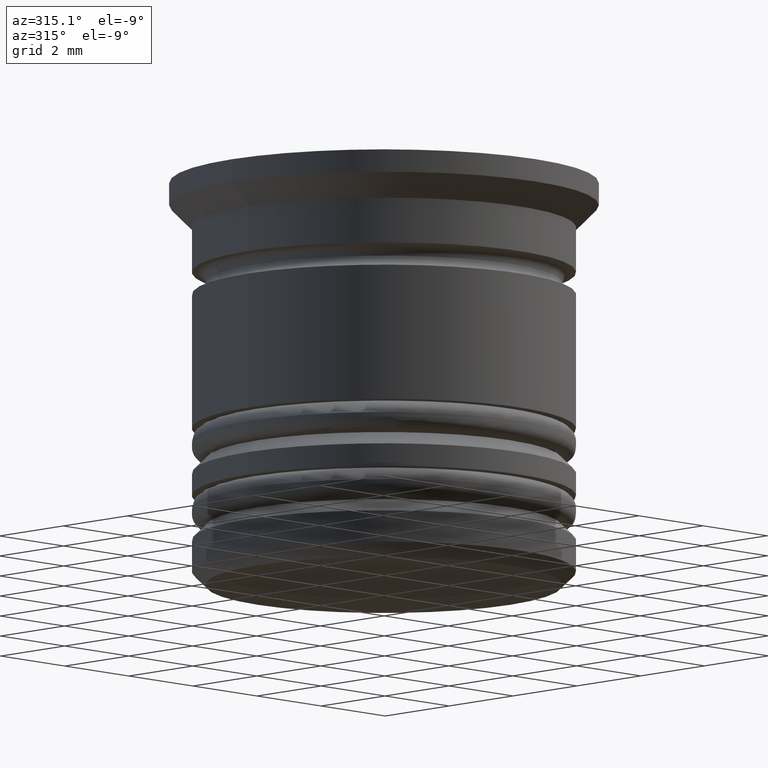
[diagram: clean part render]
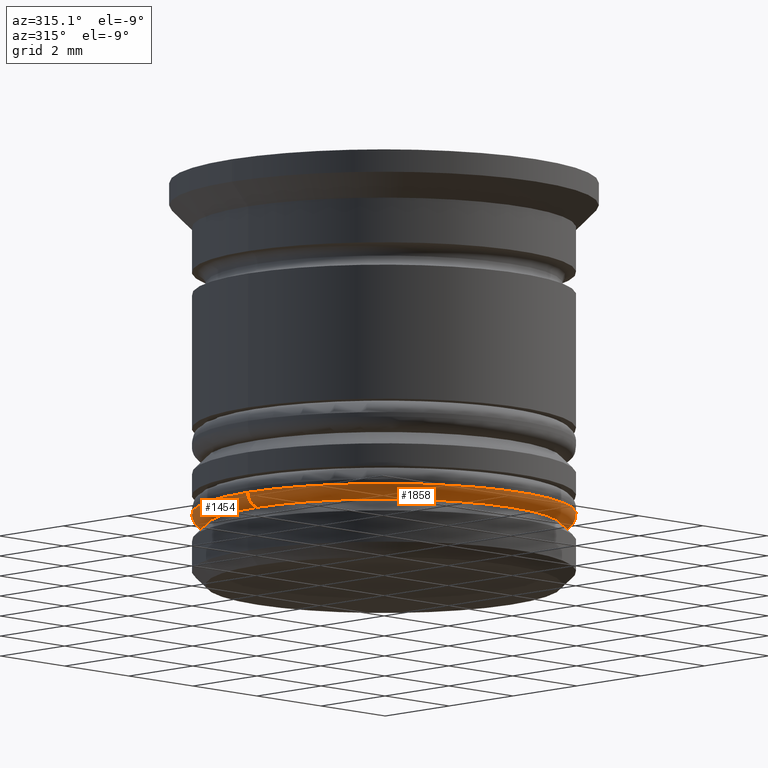
[diagram: same view with one multi-face feature highlighted, each face labeled with its STEP entity id]
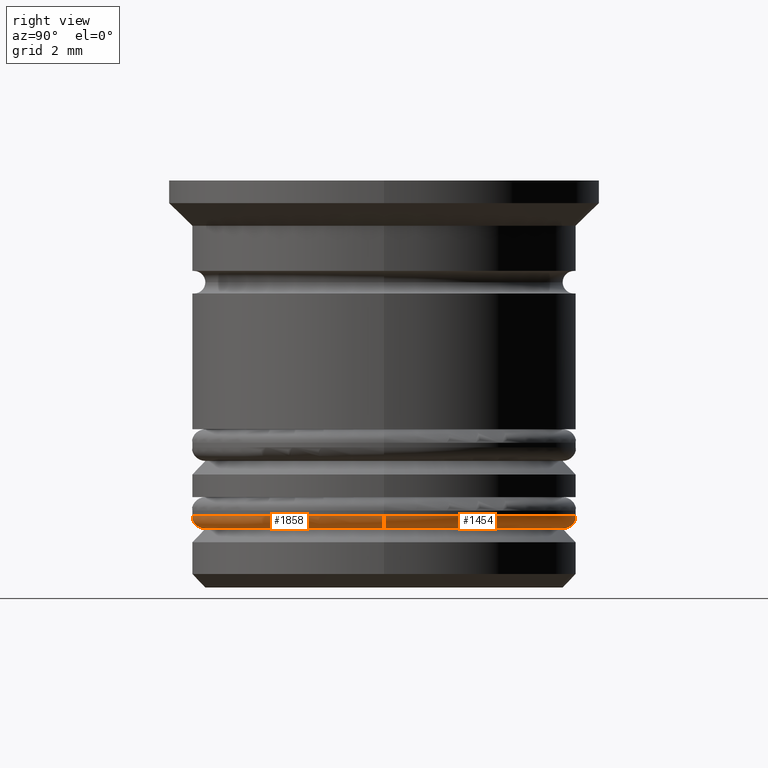
[diagram: same view with one multi-face feature highlighted, each face labeled with its STEP entity id]
A machine part, auxiliary view. The highlighted faces form ONE feature: a constant-radius fillet chain: 2 tangent blend faces with common blend radius 0.3 mm. The faces share edges in the B-rep.
A second angle (right view) of the same feature is appended — it is thin or edge-on in the first view.
Their STEP definitions:
[1] entity #1858 (Torus):
#35 = VERTEX_POINT ( 'NONE', #861 ) ;
#81 = CIRCLE ( 'NONE', #1633, 0.2999999999999999334 ) ;
#93 = EDGE_CURVE ( 'NONE', #35, #1639, #746, .T. ) ;
#168 = CARTESIAN_POINT ( 'NONE',  ( -3.950000000000000178, 4.837354856632045057E-16, -7.400000000000005684 ) ) ;
#271 = EDGE_LOOP ( 'NONE', ( #1100, #416, #1562, #1157 ) ) ;
#410 = AXIS2_PLACEMENT_3D ( 'NONE', #1859, #772, #436 ) ;
#416 = ORIENTED_EDGE ( 'NONE', *, *, #1312, .F. ) ;
#420 = CARTESIAN_POINT ( 'NONE',  ( 0.000000000000000000, 0.000000000000000000, -7.400000000000005684 ) ) ;
#436 = DIRECTION ( 'NONE',  ( 1.000000000000000000, 0.000000000000000000, 0.000000000000000000 ) ) ;
#581 = DIRECTION ( 'NONE',  ( 1.000000000000000000, 0.000000000000000000, 0.000000000000000000 ) ) ;
#593 = FACE_OUTER_BOUND ( 'NONE', #271, .T. ) ;
#621 = DIRECTION ( 'NONE',  ( -1.000000000000000000, 1.224646799147353207E-16, 0.000000000000000000 ) ) ;
#746 = CIRCLE ( 'NONE', #810, 4.250000000000000000 ) ;
#772 = DIRECTION ( 'NONE',  ( 0.000000000000000000, 0.000000000000000000, 1.000000000000000000 ) ) ;
#810 = AXIS2_PLACEMENT_3D ( 'NONE', #420, #1999, #581 ) ;
#821 = VERTEX_POINT ( 'NONE', #1728 ) ;
#851 = TOROIDAL_SURFACE ( 'NONE', #410, 3.950000000000000178, 0.2999999999999999889 ) ;
#861 = CARTESIAN_POINT ( 'NONE',  ( -4.250000000000000000, 5.204748896376250699E-16, -7.400000000000005684 ) ) ;
#885 = CIRCLE ( 'NONE', #1077, 3.950000000000000178 ) ;
#911 = AXIS2_PLACEMENT_3D ( 'NONE', #1820, #2001, #2011 ) ;
#1032 = CARTESIAN_POINT ( 'NONE',  ( 3.950000000000000178, 0.000000000000000000, -7.700000000000005507 ) ) ;
#1038 = VERTEX_POINT ( 'NONE', #1032 ) ;
#1057 = CARTESIAN_POINT ( 'NONE',  ( 0.000000000000000000, 0.000000000000000000, -7.700000000000005507 ) ) ;
#1077 = AXIS2_PLACEMENT_3D ( 'NONE', #1057, #2014, #1230 ) ;
#1100 = ORIENTED_EDGE ( 'NONE', *, *, #1891, .F. ) ;
#1157 = ORIENTED_EDGE ( 'NONE', *, *, #93, .F. ) ;
#1230 = DIRECTION ( 'NONE',  ( 1.000000000000000000, 0.000000000000000000, 0.000000000000000000 ) ) ;
#1312 = EDGE_CURVE ( 'NONE', #1038, #821, #885, .T. ) ;
#1562 = ORIENTED_EDGE ( 'NONE', *, *, #1649, .T. ) ;
#1633 = AXIS2_PLACEMENT_3D ( 'NONE', #168, #1888, #621 ) ;
#1639 = VERTEX_POINT ( 'NONE', #1683 ) ;
#1649 = EDGE_CURVE ( 'NONE', #1038, #1639, #1698, .T. ) ;
#1683 = CARTESIAN_POINT ( 'NONE',  ( 4.250000000000000000, 0.000000000000000000, -7.400000000000005684 ) ) ;
#1698 = CIRCLE ( 'NONE', #911, 0.2999999999999999334 ) ;
#1728 = CARTESIAN_POINT ( 'NONE',  ( -3.950000000000000178, 5.021051876504148371E-16, -7.700000000000005507 ) ) ;
#1820 = CARTESIAN_POINT ( 'NONE',  ( 3.950000000000000178, 0.000000000000000000, -7.400000000000005684 ) ) ;
#1858 = ADVANCED_FACE ( 'NONE', ( #593 ), #851, .T. ) ;
#1859 = CARTESIAN_POINT ( 'NONE',  ( 0.000000000000000000, 0.000000000000000000, -7.400000000000005684 ) ) ;
#1888 = DIRECTION ( 'NONE',  ( 1.224646799147353207E-16, 1.000000000000000000, -0.000000000000000000 ) ) ;
#1891 = EDGE_CURVE ( 'NONE', #821, #35, #81, .T. ) ;
#1999 = DIRECTION ( 'NONE',  ( 0.000000000000000000, 0.000000000000000000, 1.000000000000000000 ) ) ;
#2001 = DIRECTION ( 'NONE',  ( 0.000000000000000000, -1.000000000000000000, 0.000000000000000000 ) ) ;
#2011 = DIRECTION ( 'NONE',  ( 0.000000000000000000, 0.000000000000000000, -1.000000000000000000 ) ) ;
#2014 = DIRECTION ( 'NONE',  ( -0.000000000000000000, -0.000000000000000000, -1.000000000000000000 ) ) ;
[2] entity #1454 (Torus):
#35 = VERTEX_POINT ( 'NONE', #861 ) ;
#66 = ORIENTED_EDGE ( 'NONE', *, *, #419, .F. ) ;
#81 = CIRCLE ( 'NONE', #1633, 0.2999999999999999334 ) ;
#123 = DIRECTION ( 'NONE',  ( 0.000000000000000000, 0.000000000000000000, 1.000000000000000000 ) ) ;
#168 = CARTESIAN_POINT ( 'NONE',  ( -3.950000000000000178, 4.837354856632045057E-16, -7.400000000000005684 ) ) ;
#170 = ORIENTED_EDGE ( 'NONE', *, *, #1891, .T. ) ;
#377 = AXIS2_PLACEMENT_3D ( 'NONE', #1377, #727, #2010 ) ;
#387 = ORIENTED_EDGE ( 'NONE', *, *, #1649, .F. ) ;
#419 = EDGE_CURVE ( 'NONE', #1639, #35, #1432, .T. ) ;
#621 = DIRECTION ( 'NONE',  ( -1.000000000000000000, 1.224646799147353207E-16, 0.000000000000000000 ) ) ;
#654 = AXIS2_PLACEMENT_3D ( 'NONE', #950, #1283, #1915 ) ;
#660 = FACE_OUTER_BOUND ( 'NONE', #1710, .T. ) ;
#727 = DIRECTION ( 'NONE',  ( -0.000000000000000000, -0.000000000000000000, -1.000000000000000000 ) ) ;
#763 = DIRECTION ( 'NONE',  ( 1.000000000000000000, 0.000000000000000000, 0.000000000000000000 ) ) ;
#821 = VERTEX_POINT ( 'NONE', #1728 ) ;
#861 = CARTESIAN_POINT ( 'NONE',  ( -4.250000000000000000, 5.204748896376250699E-16, -7.400000000000005684 ) ) ;
#911 = AXIS2_PLACEMENT_3D ( 'NONE', #1820, #2001, #2011 ) ;
#950 = CARTESIAN_POINT ( 'NONE',  ( 0.000000000000000000, 0.000000000000000000, -7.400000000000005684 ) ) ;
#1006 = ORIENTED_EDGE ( 'NONE', *, *, #1059, .F. ) ;
#1032 = CARTESIAN_POINT ( 'NONE',  ( 3.950000000000000178, 0.000000000000000000, -7.700000000000005507 ) ) ;
#1038 = VERTEX_POINT ( 'NONE', #1032 ) ;
#1059 = EDGE_CURVE ( 'NONE', #821, #1038, #1470, .T. ) ;
#1140 = AXIS2_PLACEMENT_3D ( 'NONE', #2006, #123, #763 ) ;
#1283 = DIRECTION ( 'NONE',  ( 0.000000000000000000, 0.000000000000000000, 1.000000000000000000 ) ) ;
#1377 = CARTESIAN_POINT ( 'NONE',  ( 0.000000000000000000, 0.000000000000000000, -7.700000000000005507 ) ) ;
#1432 = CIRCLE ( 'NONE', #1140, 4.250000000000000000 ) ;
#1454 = ADVANCED_FACE ( 'NONE', ( #660 ), #1540, .T. ) ;
#1470 = CIRCLE ( 'NONE', #377, 3.950000000000000178 ) ;
#1540 = TOROIDAL_SURFACE ( 'NONE', #654, 3.950000000000000178, 0.2999999999999999889 ) ;
#1633 = AXIS2_PLACEMENT_3D ( 'NONE', #168, #1888, #621 ) ;
#1639 = VERTEX_POINT ( 'NONE', #1683 ) ;
#1649 = EDGE_CURVE ( 'NONE', #1038, #1639, #1698, .T. ) ;
#1683 = CARTESIAN_POINT ( 'NONE',  ( 4.250000000000000000, 0.000000000000000000, -7.400000000000005684 ) ) ;
#1698 = CIRCLE ( 'NONE', #911, 0.2999999999999999334 ) ;
#1710 = EDGE_LOOP ( 'NONE', ( #1006, #170, #66, #387 ) ) ;
#1728 = CARTESIAN_POINT ( 'NONE',  ( -3.950000000000000178, 5.021051876504148371E-16, -7.700000000000005507 ) ) ;
#1820 = CARTESIAN_POINT ( 'NONE',  ( 3.950000000000000178, 0.000000000000000000, -7.400000000000005684 ) ) ;
#1888 = DIRECTION ( 'NONE',  ( 1.224646799147353207E-16, 1.000000000000000000, -0.000000000000000000 ) ) ;
#1891 = EDGE_CURVE ( 'NONE', #821, #35, #81, .T. ) ;
#1915 = DIRECTION ( 'NONE',  ( 1.000000000000000000, 0.000000000000000000, 0.000000000000000000 ) ) ;
#2001 = DIRECTION ( 'NONE',  ( 0.000000000000000000, -1.000000000000000000, 0.000000000000000000 ) ) ;
#2006 = CARTESIAN_POINT ( 'NONE',  ( 0.000000000000000000, 0.000000000000000000, -7.400000000000005684 ) ) ;
#2010 = DIRECTION ( 'NONE',  ( 1.000000000000000000, 0.000000000000000000, 0.000000000000000000 ) ) ;
#2011 = DIRECTION ( 'NONE',  ( 0.000000000000000000, 0.000000000000000000, -1.000000000000000000 ) ) ;